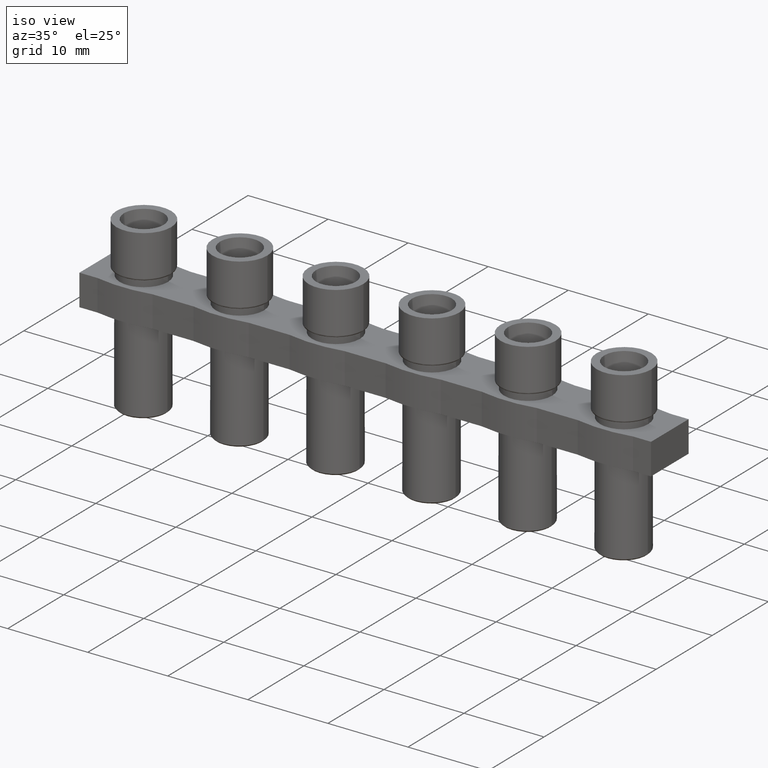
[diagram: clean part render]
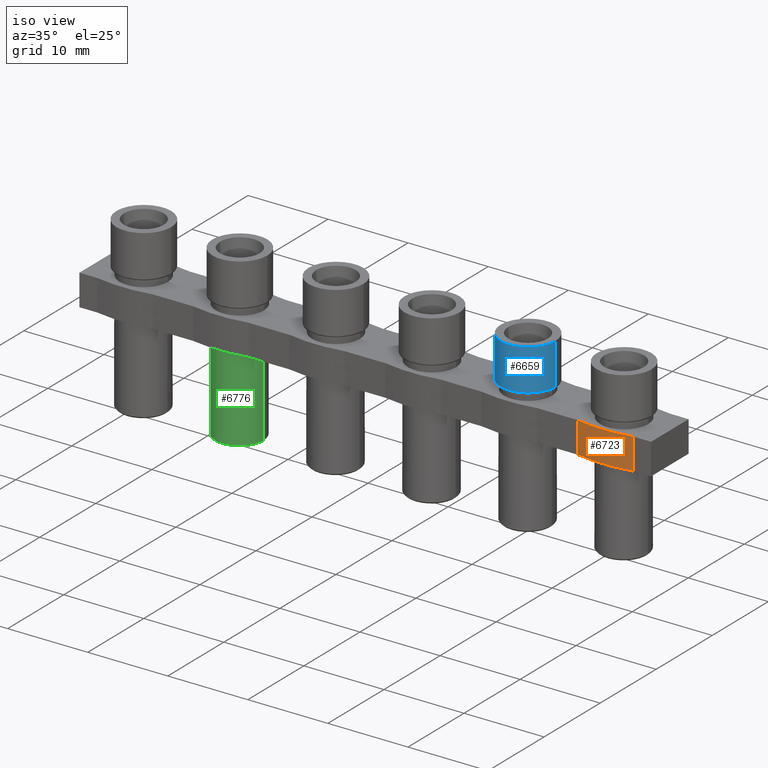
[diagram: same view with three faces highlighted in distinct colors, each labeled with its STEP entity id]
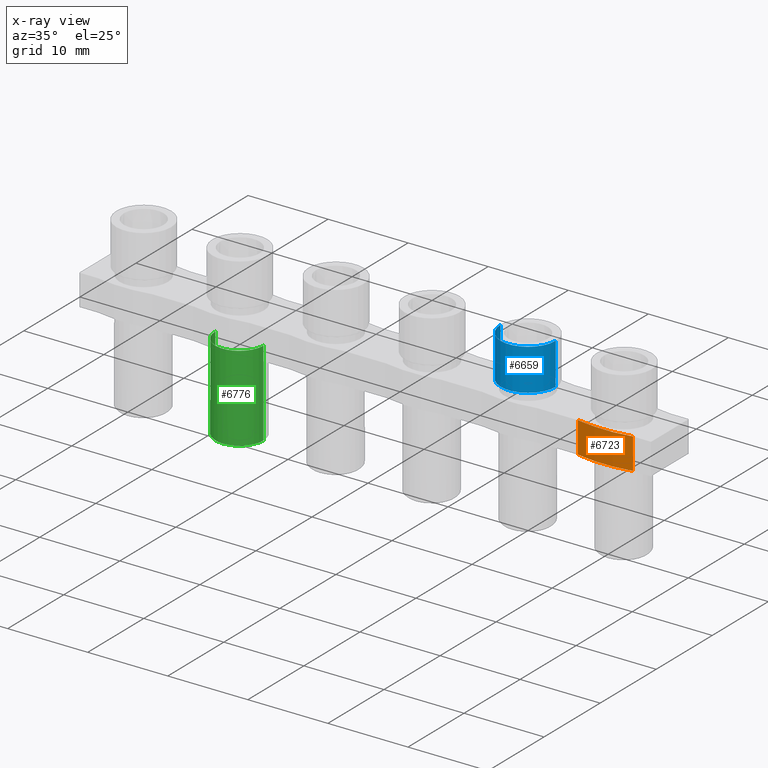
[diagram: x-ray of the same camera — body ghosted, the three highlighted faces saturated]
A machine part, iso view with three faces highlighted in distinct colors.
The next image is the same camera in x-ray (body ghosted, the three faces saturated) — at least one of them is partly hidden behind the body in this view.
Their STEP definitions:

[orange] entity #6723 — the highlighted cylindrical surface (partial cylindrical patch) has radius 17.15 mm, axis along (0, 0, 1).
#38 = AXIS2_PLACEMENT_3D ( 'NONE', #732, #750, #751 ) ;
#718 = FACE_OUTER_BOUND ( 'NONE', #4945, .T. ) ;
#732 = CARTESIAN_POINT ( 'NONE',  ( 12.00000000000000400, 13.45000000000008600, -9.302499305941093900 ) ) ;
#735 = CYLINDRICAL_SURFACE ( 'NONE', #38, 17.15000000000021900 ) ;
#750 = DIRECTION ( 'NONE',  ( 0.0000000000000000000, 0.0000000000000000000, 1.000000000000000000 ) ) ;
#751 = DIRECTION ( 'NONE',  ( 1.000000000000000000, 0.0000000000000000000, 0.0000000000000000000 ) ) ;
#1483 = CARTESIAN_POINT ( 'NONE',  ( 8.552899769370297300, -3.349999999999914800, -0.9000000000000014700 ) ) ;
#1581 = CARTESIAN_POINT ( 'NONE',  ( 15.44710023062971500, -3.349999999999914400, -0.9000000000000014700 ) ) ;
#1601 = CARTESIAN_POINT ( 'NONE',  ( 8.552899769370302600, -3.349999999999916600, -4.800000000000001600 ) ) ;
#1603 = CARTESIAN_POINT ( 'NONE',  ( 15.44710023062973500, -3.349999999999912600, -4.800000000000001600 ) ) ;
#2033 = DIRECTION ( 'NONE',  ( 0.0000000000000000000, 0.0000000000000000000, -1.000000000000000000 ) ) ;
#2069 = DIRECTION ( 'NONE',  ( -1.000000000000000000, 0.0000000000000000000, 0.0000000000000000000 ) ) ;
#2070 = CARTESIAN_POINT ( 'NONE',  ( 12.00000000000000400, 13.45000000000008600, -0.9000000000000014700 ) ) ;
#2228 = LINE ( 'NONE', #2236, #8147 ) ;
#2236 = CARTESIAN_POINT ( 'NONE',  ( 15.44710023062971300, -3.349999999999915300, -9.302499305941093900 ) ) ;
#2246 = DIRECTION ( 'NONE',  ( 0.0000000000000000000, 0.0000000000000000000, 1.000000000000000000 ) ) ;
#2270 = CARTESIAN_POINT ( 'NONE',  ( 12.00000000000000400, 13.45000000000008600, -4.800000000000001600 ) ) ;
#2271 = DIRECTION ( 'NONE',  ( 0.0000000000000000000, 0.0000000000000000000, -1.000000000000000000 ) ) ;
#2282 = DIRECTION ( 'NONE',  ( -1.000000000000000000, 0.0000000000000000000, 0.0000000000000000000 ) ) ;
#3832 = ORIENTED_EDGE ( 'NONE', *, *, #5536, .F. ) ;
#3858 = ORIENTED_EDGE ( 'NONE', *, *, #5398, .T. ) ;
#3867 = ORIENTED_EDGE ( 'NONE', *, *, #5660, .T. ) ;
#3875 = ORIENTED_EDGE ( 'NONE', *, *, #5499, .T. ) ;
#4639 = VERTEX_POINT ( 'NONE', #1483 ) ;
#4684 = VERTEX_POINT ( 'NONE', #1601 ) ;
#4685 = VERTEX_POINT ( 'NONE', #1581 ) ;
#4717 = VERTEX_POINT ( 'NONE', #1603 ) ;
#4945 = EDGE_LOOP ( 'NONE', ( #3875, #3858, #3867, #3832 ) ) ;
#5335 = LINE ( 'NONE', #5393, #7276 ) ;
#5393 = CARTESIAN_POINT ( 'NONE',  ( 8.552899769370297300, -3.349999999999916200, -9.302499305941093900 ) ) ;
#5398 = EDGE_CURVE ( 'NONE', #4685, #4639, #8068, .T. ) ;
#5417 = DIRECTION ( 'NONE',  ( -0.0000000000000000000, -0.0000000000000000000, -1.000000000000000000 ) ) ;
#5499 = EDGE_CURVE ( 'NONE', #4717, #4685, #2228, .T. ) ;
#5536 = EDGE_CURVE ( 'NONE', #4717, #4684, #7191, .T. ) ;
#5660 = EDGE_CURVE ( 'NONE', #4639, #4684, #5335, .T. ) ;
#6723 = ADVANCED_FACE ( 'NONE', ( #718 ), #735, .T. ) ;
#7175 = AXIS2_PLACEMENT_3D ( 'NONE', #2270, #2271, #2282 ) ;
#7191 = CIRCLE ( 'NONE', #7175, 17.15000000000021900 ) ;
#7276 = VECTOR ( 'NONE', #5417, 1000.000000000000000 ) ;
#8063 = AXIS2_PLACEMENT_3D ( 'NONE', #2070, #2033, #2069 ) ;
#8068 = CIRCLE ( 'NONE', #8063, 17.15000000000021900 ) ;
#8147 = VECTOR ( 'NONE', #2246, 1000.000000000000000 ) ;

[blue] entity #6659 — the highlighted cylindrical surface (edge-blend (fillet) strip) has radius 3.425 mm, axis along (-0, -0, -1).
#323 = FACE_OUTER_BOUND ( 'NONE', #4529, .T. ) ;
#324 = CYLINDRICAL_SURFACE ( 'NONE', #7963, 3.424999999999998000 ) ;
#325 = DIRECTION ( 'NONE',  ( -0.0000000000000000000, -0.0000000000000000000, -1.000000000000000000 ) ) ;
#328 = DIRECTION ( 'NONE',  ( -1.000000000000000000, 0.0000000000000000000, 0.0000000000000000000 ) ) ;
#336 = CARTESIAN_POINT ( 'NONE',  ( 0.0000000000000000000, 0.0000000000000000000, 5.400000000000000400 ) ) ;
#1746 = CARTESIAN_POINT ( 'NONE',  ( 3.424999999999998000, 4.194415287079682000E-016, 0.1999999999999996500 ) ) ;
#1757 = CARTESIAN_POINT ( 'NONE',  ( -3.424999999999998000, 0.0000000000000000000, 0.1999999999999996500 ) ) ;
#1820 = CARTESIAN_POINT ( 'NONE',  ( 3.424999999999998000, 4.194415287079682000E-016, 5.400000000000000400 ) ) ;
#1847 = CARTESIAN_POINT ( 'NONE',  ( -3.424999999999998000, 0.0000000000000000000, 5.400000000000000400 ) ) ;
#2526 = LINE ( 'NONE', #2527, #7939 ) ;
#2527 = CARTESIAN_POINT ( 'NONE',  ( -3.424999999999998000, 0.0000000000000000000, 5.400000000000000400 ) ) ;
#2531 = DIRECTION ( 'NONE',  ( -0.0000000000000000000, -0.0000000000000000000, -1.000000000000000000 ) ) ;
#2549 = LINE ( 'NONE', #2571, #7931 ) ;
#2550 = DIRECTION ( 'NONE',  ( -0.0000000000000000000, -0.0000000000000000000, -1.000000000000000000 ) ) ;
#2571 = CARTESIAN_POINT ( 'NONE',  ( 3.424999999999998000, 4.194415287079682000E-016, 5.400000000000000400 ) ) ;
#2880 = DIRECTION ( 'NONE',  ( 1.000000000000000000, 0.0000000000000000000, 0.0000000000000000000 ) ) ;
#2884 = CARTESIAN_POINT ( 'NONE',  ( 0.0000000000000000000, 9.629649721936179300E-032, 0.1999999999999996500 ) ) ;
#2888 = DIRECTION ( 'NONE',  ( -0.0000000000000000000, -0.0000000000000000000, -1.000000000000000000 ) ) ;
#4036 = ORIENTED_EDGE ( 'NONE', *, *, #6203, .F. ) ;
#4040 = ORIENTED_EDGE ( 'NONE', *, *, #6469, .T. ) ;
#4059 = ORIENTED_EDGE ( 'NONE', *, *, #5713, .T. ) ;
#4065 = ORIENTED_EDGE ( 'NONE', *, *, #6475, .F. ) ;
#4529 = EDGE_LOOP ( 'NONE', ( #4065, #4059, #4040, #4036 ) ) ;
#5002 = VERTEX_POINT ( 'NONE', #1757 ) ;
#5030 = VERTEX_POINT ( 'NONE', #1746 ) ;
#5091 = VERTEX_POINT ( 'NONE', #1847 ) ;
#5100 = VERTEX_POINT ( 'NONE', #1820 ) ;
#5650 = DIRECTION ( 'NONE',  ( -1.000000000000000000, 0.0000000000000000000, 0.0000000000000000000 ) ) ;
#5659 = CARTESIAN_POINT ( 'NONE',  ( 0.0000000000000000000, 0.0000000000000000000, 5.400000000000000400 ) ) ;
#5661 = DIRECTION ( 'NONE',  ( -0.0000000000000000000, -0.0000000000000000000, -1.000000000000000000 ) ) ;
#5713 = EDGE_CURVE ( 'NONE', #5100, #5091, #7302, .T. ) ;
#6203 = EDGE_CURVE ( 'NONE', #5030, #5002, #7650, .T. ) ;
#6469 = EDGE_CURVE ( 'NONE', #5091, #5002, #2526, .T. ) ;
#6475 = EDGE_CURVE ( 'NONE', #5100, #5030, #2549, .T. ) ;
#6659 = ADVANCED_FACE ( 'NONE', ( #323 ), #324, .T. ) ;
#7302 = CIRCLE ( 'NONE', #7305, 3.424999999999998000 ) ;
#7305 = AXIS2_PLACEMENT_3D ( 'NONE', #5659, #5661, #5650 ) ;
#7650 = CIRCLE ( 'NONE', #7662, 3.424999999999998000 ) ;
#7662 = AXIS2_PLACEMENT_3D ( 'NONE', #2884, #2888, #2880 ) ;
#7931 = VECTOR ( 'NONE', #2550, 1000.000000000000000 ) ;
#7939 = VECTOR ( 'NONE', #2531, 1000.000000000000000 ) ;
#7963 = AXIS2_PLACEMENT_3D ( 'NONE', #336, #325, #328 ) ;

[green] entity #6776 — the highlighted cylindrical surface (edge-blend (fillet) strip) has radius 3 mm, axis along (-0, -0, -1).
#49 = AXIS2_PLACEMENT_3D ( 'NONE', #8341, #8349, #8422 ) ;
#1737 = CARTESIAN_POINT ( 'NONE',  ( -33.06167760658913600, -6.500480359737093400E-015, -15.60000000008048600 ) ) ;
#1788 = CARTESIAN_POINT ( 'NONE',  ( -39.06167760658912900, -6.867874399481300400E-015, -15.60000000008048600 ) ) ;
#1792 = CARTESIAN_POINT ( 'NONE',  ( -39.06167760658127700, -6.867874399481300400E-015, -4.900000000077398000 ) ) ;
#1836 = CARTESIAN_POINT ( 'NONE',  ( -36.06167760658913600, -2.999999999911698200, -15.60000000008048600 ) ) ;
#1842 = CARTESIAN_POINT ( 'NONE',  ( -33.06167760659699400, -6.500480359737575400E-015, -4.900000000077398000 ) ) ;
#2975 = LINE ( 'NONE', #3027, #7709 ) ;
#3001 = DIRECTION ( 'NONE',  ( -0.0000000000000000000, -0.0000000000000000000, -1.000000000000000000 ) ) ;
#3027 = CARTESIAN_POINT ( 'NONE',  ( -39.06167760658912900, -6.867874399481300400E-015, -4.800000000080492800 ) ) ;
#3083 = DIRECTION ( 'NONE',  ( -0.0000000000000000000, -0.0000000000000000000, -1.000000000000000000 ) ) ;
#3089 = LINE ( 'NONE', #3120, #7808 ) ;
#3120 = CARTESIAN_POINT ( 'NONE',  ( -33.06167760658913600, -6.500480359737094200E-015, -4.800000000080492800 ) ) ;
#3129 = CARTESIAN_POINT ( 'NONE',  ( -36.06167760658913600, -6.867874399481300400E-015, -15.60000000008048600 ) ) ;
#3143 = DIRECTION ( 'NONE',  ( 0.0000000000000000000, 0.0000000000000000000, 1.000000000000000000 ) ) ;
#3153 = DIRECTION ( 'NONE',  ( -1.000000000000000000, 0.0000000000000000000, 0.0000000000000000000 ) ) ;
#4271 = ORIENTED_EDGE ( 'NONE', *, *, #5862, .T. ) ;
#4298 = ORIENTED_EDGE ( 'NONE', *, *, #6323, .F. ) ;
#4333 = ORIENTED_EDGE ( 'NONE', *, *, #5909, .F. ) ;
#4368 = ORIENTED_EDGE ( 'NONE', *, *, #6260, .T. ) ;
#4390 = ORIENTED_EDGE ( 'NONE', *, *, #6340, .T. ) ;
#4555 = EDGE_LOOP ( 'NONE', ( #4298, #4333, #4368, #4271, #4390 ) ) ;
#5010 = VERTEX_POINT ( 'NONE', #1737 ) ;
#5053 = VERTEX_POINT ( 'NONE', #1842 ) ;
#5058 = VERTEX_POINT ( 'NONE', #1788 ) ;
#5074 = VERTEX_POINT ( 'NONE', #1792 ) ;
#5096 = VERTEX_POINT ( 'NONE', #1836 ) ;
#5862 = EDGE_CURVE ( 'NONE', #5058, #5096, #7398, .T. ) ;
#5909 = EDGE_CURVE ( 'NONE', #5074, #5053, #7457, .T. ) ;
#6260 = EDGE_CURVE ( 'NONE', #5074, #5058, #2975, .T. ) ;
#6323 = EDGE_CURVE ( 'NONE', #5053, #5010, #3089, .T. ) ;
#6328 = DIRECTION ( 'NONE',  ( 0.0000000000000000000, 0.0000000000000000000, 1.000000000000000000 ) ) ;
#6340 = EDGE_CURVE ( 'NONE', #5096, #5010, #7807, .T. ) ;
#6341 = DIRECTION ( 'NONE',  ( -1.000000000000000000, 0.0000000000000000000, 0.0000000000000000000 ) ) ;
#6357 = CARTESIAN_POINT ( 'NONE',  ( -36.06167760658913600, -6.867874399481300400E-015, -15.60000000008048600 ) ) ;
#6468 = CARTESIAN_POINT ( 'NONE',  ( -36.06167760658913600, -6.867874399481300400E-015, -4.900000000077398000 ) ) ;
#6482 = DIRECTION ( 'NONE',  ( -0.0000000000000000000, -0.0000000000000000000, 1.000000000000000000 ) ) ;
#6494 = DIRECTION ( 'NONE',  ( -1.000000000000000000, 0.0000000000000000000, 0.0000000000000000000 ) ) ;
#6776 = ADVANCED_FACE ( 'NONE', ( #8333 ), #8337, .T. ) ;
#7398 = CIRCLE ( 'NONE', #7400, 2.999999999999995600 ) ;
#7400 = AXIS2_PLACEMENT_3D ( 'NONE', #6357, #6328, #6341 ) ;
#7457 = CIRCLE ( 'NONE', #7463, 2.999999999992141000 ) ;
#7463 = AXIS2_PLACEMENT_3D ( 'NONE', #6468, #6482, #6494 ) ;
#7709 = VECTOR ( 'NONE', #3001, 1000.000000000000000 ) ;
#7807 = CIRCLE ( 'NONE', #7809, 2.999999999999995600 ) ;
#7808 = VECTOR ( 'NONE', #3083, 1000.000000000000000 ) ;
#7809 = AXIS2_PLACEMENT_3D ( 'NONE', #3129, #3143, #3153 ) ;
#8333 = FACE_OUTER_BOUND ( 'NONE', #4555, .T. ) ;
#8337 = CYLINDRICAL_SURFACE ( 'NONE', #49, 2.999999999999995600 ) ;
#8341 = CARTESIAN_POINT ( 'NONE',  ( -36.06167760658913600, -6.867874399481300400E-015, -4.800000000080492800 ) ) ;
#8349 = DIRECTION ( 'NONE',  ( -0.0000000000000000000, -0.0000000000000000000, -1.000000000000000000 ) ) ;
#8422 = DIRECTION ( 'NONE',  ( -1.000000000000000000, 0.0000000000000000000, 0.0000000000000000000 ) ) ;